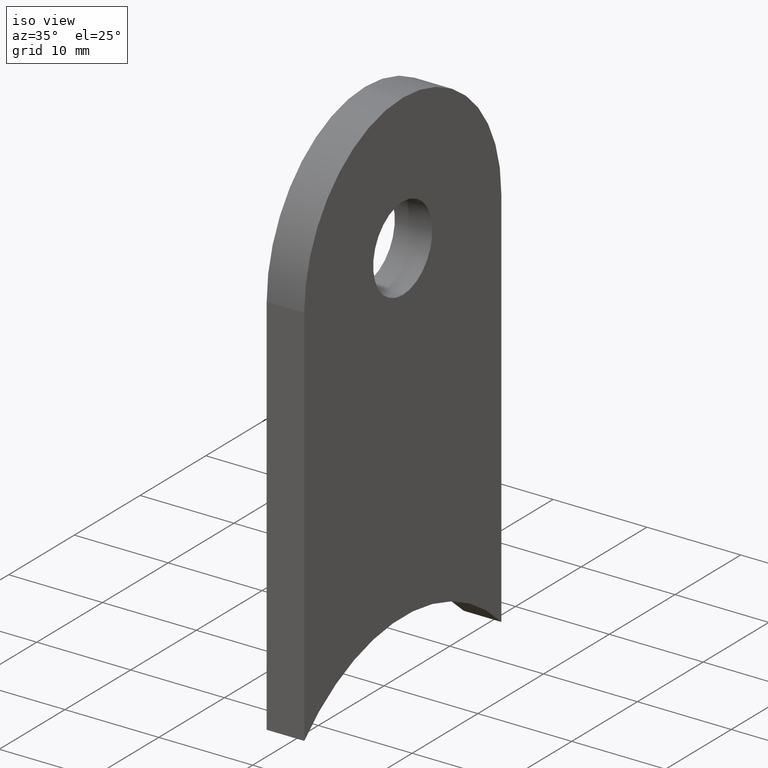
[diagram: clean part render]
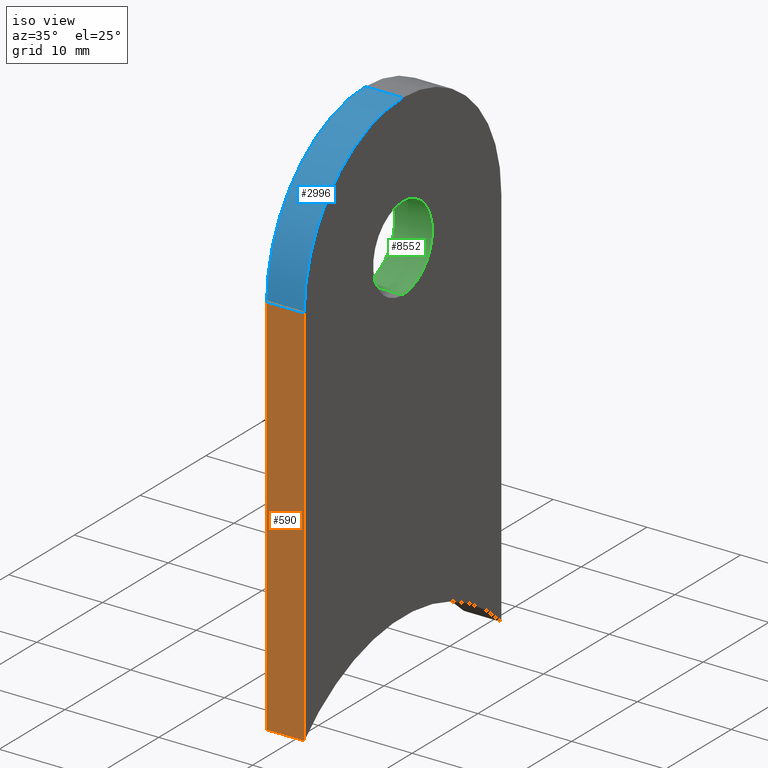
[diagram: same view with three faces highlighted in distinct colors, each labeled with its STEP entity id]
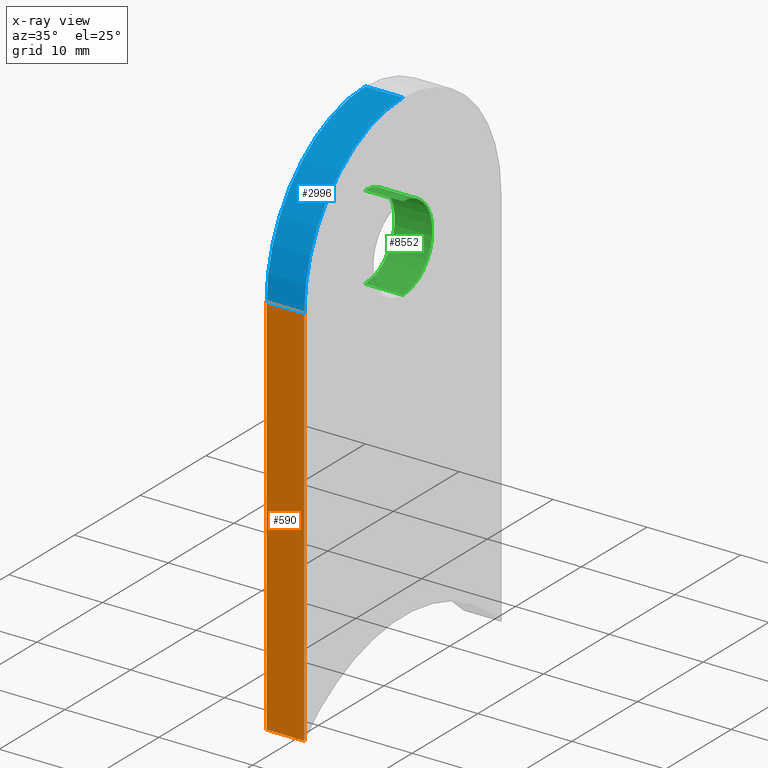
[diagram: x-ray of the same camera — body ghosted, the three highlighted faces saturated]
A machine part, iso view with three faces highlighted in distinct colors.
The next image is the same camera in x-ray (body ghosted, the three faces saturated) — at least one of them is partly hidden behind the body in this view.
Their STEP definitions:

[orange] entity #590 — the highlighted planar face has unit normal (0, -1, 0).
#484 = DIRECTION ( 'NONE',  ( 0.0000000000000000000, 4.956352788505163400E-017, 1.000000000000000000 ) ) ;
#521 = CARTESIAN_POINT ( 'NONE',  ( -2.000000000000000000, -15.00000000000000000, -6.218678295957995600 ) ) ;
#590 = ADVANCED_FACE ( 'NONE', ( #6642 ), #1513, .T. ) ;
#1355 = EDGE_CURVE ( 'NONE', #11790, #3927, #7203, .T. ) ;
#1513 = PLANE ( 'NONE',  #4318 ) ;
#1571 = CARTESIAN_POINT ( 'NONE',  ( 2.000000000000000000, -15.00000000000000000, -6.218678295957995600 ) ) ;
#1956 = ORIENTED_EDGE ( 'NONE', *, *, #4343, .F. ) ;
#2071 = VERTEX_POINT ( 'NONE', #1571 ) ;
#2441 = DIRECTION ( 'NONE',  ( 1.000000000000000000, -0.0000000000000000000, -0.0000000000000000000 ) ) ;
#2957 = ORIENTED_EDGE ( 'NONE', *, *, #1355, .T. ) ;
#2972 = ORIENTED_EDGE ( 'NONE', *, *, #4272, .T. ) ;
#3041 = ORIENTED_EDGE ( 'NONE', *, *, #3742, .T. ) ;
#3085 = VECTOR ( 'NONE', #2441, 1000.000000000000000 ) ;
#3742 = EDGE_CURVE ( 'NONE', #7657, #2071, #5609, .T. ) ;
#3927 = VERTEX_POINT ( 'NONE', #5370 ) ;
#4272 = EDGE_CURVE ( 'NONE', #2071, #11790, #11428, .T. ) ;
#4318 = AXIS2_PLACEMENT_3D ( 'NONE', #4417, #10921, #6337 ) ;
#4343 = EDGE_CURVE ( 'NONE', #7657, #3927, #6475, .T. ) ;
#4417 = CARTESIAN_POINT ( 'NONE',  ( 2.000000000000000000, -15.00000000000000000, -3.061616997868383000E-015 ) ) ;
#5370 = CARTESIAN_POINT ( 'NONE',  ( -2.000000000000000000, -14.99999999999999800, 34.99999999999999300 ) ) ;
#5609 = LINE ( 'NONE', #521, #3085 ) ;
#5663 = DIRECTION ( 'NONE',  ( -1.000000000000000000, -0.0000000000000000000, -0.0000000000000000000 ) ) ;
#5705 = CARTESIAN_POINT ( 'NONE',  ( 2.000000000000000000, -14.99999999999999800, 34.99999999999999300 ) ) ;
#6143 = EDGE_LOOP ( 'NONE', ( #3041, #2972, #2957, #1956 ) ) ;
#6252 = CARTESIAN_POINT ( 'NONE',  ( -2.000000000000000000, -15.00000000000000000, -3.061616997868383000E-015 ) ) ;
#6337 = DIRECTION ( 'NONE',  ( 0.0000000000000000000, -4.956352788505163400E-017, -1.000000000000000000 ) ) ;
#6475 = LINE ( 'NONE', #6252, #7059 ) ;
#6642 = FACE_OUTER_BOUND ( 'NONE', #6143, .T. ) ;
#7059 = VECTOR ( 'NONE', #484, 1000.000000000000000 ) ;
#7203 = LINE ( 'NONE', #5705, #9978 ) ;
#7657 = VERTEX_POINT ( 'NONE', #9325 ) ;
#8238 = CARTESIAN_POINT ( 'NONE',  ( 2.000000000000000000, -14.99999999999999800, 34.99999999999999300 ) ) ;
#9325 = CARTESIAN_POINT ( 'NONE',  ( -2.000000000000000000, -15.00000000000000000, -6.218678295957999100 ) ) ;
#9978 = VECTOR ( 'NONE', #5663, 1000.000000000000000 ) ;
#10765 = CARTESIAN_POINT ( 'NONE',  ( 2.000000000000000000, -15.00000000000000000, -3.061616997868383000E-015 ) ) ;
#10921 = DIRECTION ( 'NONE',  ( 0.0000000000000000000, -1.000000000000000000, 4.956352788505163400E-017 ) ) ;
#11286 = VECTOR ( 'NONE', #11776, 1000.000000000000000 ) ;
#11428 = LINE ( 'NONE', #10765, #11286 ) ;
#11776 = DIRECTION ( 'NONE',  ( 0.0000000000000000000, 4.956352788505163400E-017, 1.000000000000000000 ) ) ;
#11790 = VERTEX_POINT ( 'NONE', #8238 ) ;

[blue] entity #2996 — the highlighted cylindrical surface (partial cylindrical patch) has radius 15 mm, axis along (-1, -0, -0).
#437 = EDGE_LOOP ( 'NONE', ( #9823, #3427, #10774, #7359 ) ) ;
#510 = LINE ( 'NONE', #1939, #8195 ) ;
#1224 = VERTEX_POINT ( 'NONE', #11020 ) ;
#1312 = CIRCLE ( 'NONE', #11796, 15.00000000000000000 ) ;
#1355 = EDGE_CURVE ( 'NONE', #11790, #3927, #7203, .T. ) ;
#1743 = CYLINDRICAL_SURFACE ( 'NONE', #3232, 15.00000000000000000 ) ;
#1939 = CARTESIAN_POINT ( 'NONE',  ( 2.000000000000000000, 0.0000000000000000000, 49.99999999999999300 ) ) ;
#2138 = CIRCLE ( 'NONE', #6307, 15.00000000000000000 ) ;
#2266 = CARTESIAN_POINT ( 'NONE',  ( 2.000000000000000000, 0.0000000000000000000, 34.99999999999999300 ) ) ;
#2996 = ADVANCED_FACE ( 'NONE', ( #8975 ), #1743, .T. ) ;
#3232 = AXIS2_PLACEMENT_3D ( 'NONE', #4509, #8250, #11023 ) ;
#3427 = ORIENTED_EDGE ( 'NONE', *, *, #5872, .T. ) ;
#3469 = EDGE_CURVE ( 'NONE', #3927, #11256, #1312, .T. ) ;
#3471 = CARTESIAN_POINT ( 'NONE',  ( -2.000000000000000000, 0.0000000000000000000, 49.99999999999999300 ) ) ;
#3927 = VERTEX_POINT ( 'NONE', #5370 ) ;
#4509 = CARTESIAN_POINT ( 'NONE',  ( 2.000000000000000000, 0.0000000000000000000, 34.99999999999999300 ) ) ;
#5370 = CARTESIAN_POINT ( 'NONE',  ( -2.000000000000000000, -14.99999999999999800, 34.99999999999999300 ) ) ;
#5663 = DIRECTION ( 'NONE',  ( -1.000000000000000000, -0.0000000000000000000, -0.0000000000000000000 ) ) ;
#5705 = CARTESIAN_POINT ( 'NONE',  ( 2.000000000000000000, -14.99999999999999800, 34.99999999999999300 ) ) ;
#5872 = EDGE_CURVE ( 'NONE', #1224, #11256, #510, .T. ) ;
#6094 = DIRECTION ( 'NONE',  ( -1.000000000000000000, -0.0000000000000000000, 0.0000000000000000000 ) ) ;
#6307 = AXIS2_PLACEMENT_3D ( 'NONE', #2266, #6094, #10718 ) ;
#6542 = CARTESIAN_POINT ( 'NONE',  ( -2.000000000000000000, 0.0000000000000000000, 34.99999999999999300 ) ) ;
#7033 = EDGE_CURVE ( 'NONE', #11790, #1224, #2138, .T. ) ;
#7203 = LINE ( 'NONE', #5705, #9978 ) ;
#7359 = ORIENTED_EDGE ( 'NONE', *, *, #1355, .F. ) ;
#8195 = VECTOR ( 'NONE', #9304, 1000.000000000000000 ) ;
#8238 = CARTESIAN_POINT ( 'NONE',  ( 2.000000000000000000, -14.99999999999999800, 34.99999999999999300 ) ) ;
#8250 = DIRECTION ( 'NONE',  ( -1.000000000000000000, -0.0000000000000000000, -0.0000000000000000000 ) ) ;
#8975 = FACE_OUTER_BOUND ( 'NONE', #437, .T. ) ;
#9304 = DIRECTION ( 'NONE',  ( -1.000000000000000000, -0.0000000000000000000, -0.0000000000000000000 ) ) ;
#9343 = DIRECTION ( 'NONE',  ( -1.000000000000000000, -0.0000000000000000000, 0.0000000000000000000 ) ) ;
#9385 = DIRECTION ( 'NONE',  ( 0.0000000000000000000, 0.0000000000000000000, 1.000000000000000000 ) ) ;
#9823 = ORIENTED_EDGE ( 'NONE', *, *, #7033, .T. ) ;
#9978 = VECTOR ( 'NONE', #5663, 1000.000000000000000 ) ;
#10718 = DIRECTION ( 'NONE',  ( 0.0000000000000000000, 0.0000000000000000000, 1.000000000000000000 ) ) ;
#10774 = ORIENTED_EDGE ( 'NONE', *, *, #3469, .F. ) ;
#11020 = CARTESIAN_POINT ( 'NONE',  ( 2.000000000000000000, 0.0000000000000000000, 49.99999999999999300 ) ) ;
#11023 = DIRECTION ( 'NONE',  ( 0.0000000000000000000, 0.0000000000000000000, 1.000000000000000000 ) ) ;
#11256 = VERTEX_POINT ( 'NONE', #3471 ) ;
#11790 = VERTEX_POINT ( 'NONE', #8238 ) ;
#11796 = AXIS2_PLACEMENT_3D ( 'NONE', #6542, #9343, #9385 ) ;

[green] entity #8552 — the highlighted cylindrical surface (partial cylindrical patch) has radius 4.5 mm, axis along (1, -0, -0).
#205 = CARTESIAN_POINT ( 'NONE',  ( -2.000000000000000000, 0.0000000000000000000, 35.50000000000000000 ) ) ;
#469 = CARTESIAN_POINT ( 'NONE',  ( 2.000000000000000000, 0.0000000000000000000, 35.50000000000000000 ) ) ;
#714 = EDGE_CURVE ( 'NONE', #8419, #6955, #4306, .T. ) ;
#1467 = ORIENTED_EDGE ( 'NONE', *, *, #714, .F. ) ;
#1733 = VERTEX_POINT ( 'NONE', #11996 ) ;
#2345 = CARTESIAN_POINT ( 'NONE',  ( 2.000000000000000000, 0.0000000000000000000, 30.99999999999999600 ) ) ;
#2462 = CYLINDRICAL_SURFACE ( 'NONE', #4237, 4.500000000000000900 ) ;
#2781 = DIRECTION ( 'NONE',  ( 1.000000000000000000, 0.0000000000000000000, 0.0000000000000000000 ) ) ;
#3455 = EDGE_CURVE ( 'NONE', #6955, #1733, #8677, .T. ) ;
#3874 = DIRECTION ( 'NONE',  ( 1.000000000000000000, -0.0000000000000000000, -0.0000000000000000000 ) ) ;
#4237 = AXIS2_PLACEMENT_3D ( 'NONE', #205, #7755, #10605 ) ;
#4306 = CIRCLE ( 'NONE', #11604, 4.500000000000000900 ) ;
#4706 = EDGE_CURVE ( 'NONE', #5686, #1733, #8358, .T. ) ;
#4748 = DIRECTION ( 'NONE',  ( 0.0000000000000000000, 0.0000000000000000000, -1.000000000000000000 ) ) ;
#5021 = CARTESIAN_POINT ( 'NONE',  ( -2.000000000000000000, 0.0000000000000000000, 30.99999999999999600 ) ) ;
#5686 = VERTEX_POINT ( 'NONE', #2345 ) ;
#6456 = FACE_OUTER_BOUND ( 'NONE', #8601, .T. ) ;
#6955 = VERTEX_POINT ( 'NONE', #10770 ) ;
#7202 = DIRECTION ( 'NONE',  ( 0.0000000000000000000, 0.0000000000000000000, -1.000000000000000000 ) ) ;
#7227 = CARTESIAN_POINT ( 'NONE',  ( -2.000000000000000000, 0.0000000000000000000, 30.99999999999999600 ) ) ;
#7585 = CARTESIAN_POINT ( 'NONE',  ( -2.000000000000000000, 5.510910596163090500E-016, 40.00000000000000000 ) ) ;
#7679 = DIRECTION ( 'NONE',  ( 1.000000000000000000, -0.0000000000000000000, -0.0000000000000000000 ) ) ;
#7755 = DIRECTION ( 'NONE',  ( 1.000000000000000000, -0.0000000000000000000, -0.0000000000000000000 ) ) ;
#7773 = ORIENTED_EDGE ( 'NONE', *, *, #9859, .T. ) ;
#7986 = ORIENTED_EDGE ( 'NONE', *, *, #3455, .F. ) ;
#8358 = CIRCLE ( 'NONE', #9197, 4.500000000000000900 ) ;
#8419 = VERTEX_POINT ( 'NONE', #7227 ) ;
#8552 = ADVANCED_FACE ( 'NONE', ( #6456 ), #2462, .F. ) ;
#8601 = EDGE_LOOP ( 'NONE', ( #7986, #1467, #7773, #9305 ) ) ;
#8677 = LINE ( 'NONE', #7585, #11756 ) ;
#8780 = LINE ( 'NONE', #5021, #10364 ) ;
#9197 = AXIS2_PLACEMENT_3D ( 'NONE', #469, #11912, #7202 ) ;
#9305 = ORIENTED_EDGE ( 'NONE', *, *, #4706, .T. ) ;
#9859 = EDGE_CURVE ( 'NONE', #8419, #5686, #8780, .T. ) ;
#10364 = VECTOR ( 'NONE', #7679, 1000.000000000000000 ) ;
#10605 = DIRECTION ( 'NONE',  ( 0.0000000000000000000, 0.0000000000000000000, -1.000000000000000000 ) ) ;
#10770 = CARTESIAN_POINT ( 'NONE',  ( -2.000000000000000000, 5.510910596163087600E-016, 40.00000000000000000 ) ) ;
#11179 = CARTESIAN_POINT ( 'NONE',  ( -2.000000000000000000, 0.0000000000000000000, 35.50000000000000000 ) ) ;
#11604 = AXIS2_PLACEMENT_3D ( 'NONE', #11179, #2781, #4748 ) ;
#11756 = VECTOR ( 'NONE', #3874, 1000.000000000000000 ) ;
#11912 = DIRECTION ( 'NONE',  ( 1.000000000000000000, 0.0000000000000000000, 0.0000000000000000000 ) ) ;
#11996 = CARTESIAN_POINT ( 'NONE',  ( 2.000000000000000000, 5.510910596163087600E-016, 40.00000000000000000 ) ) ;